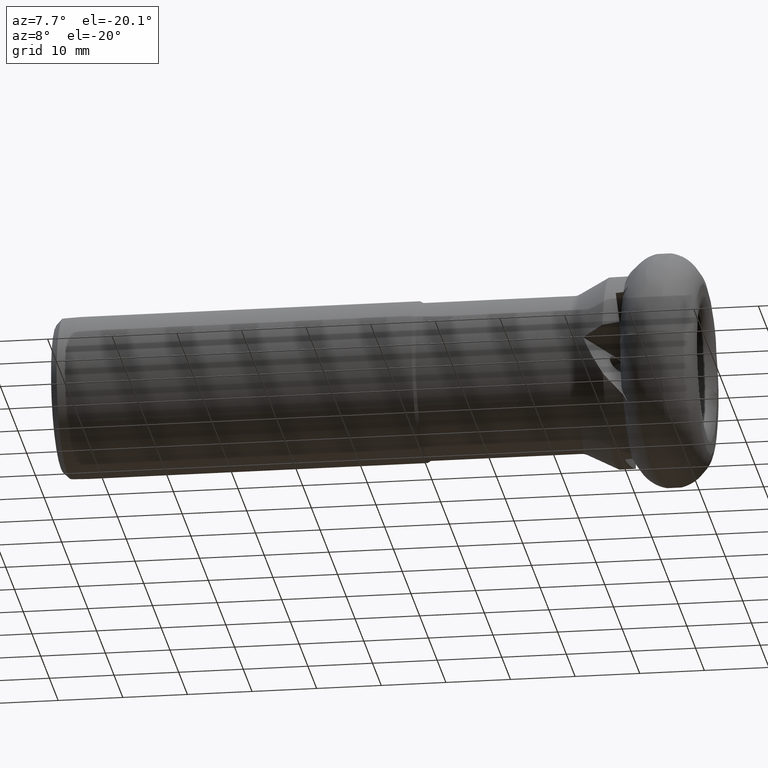
[diagram: clean part render]
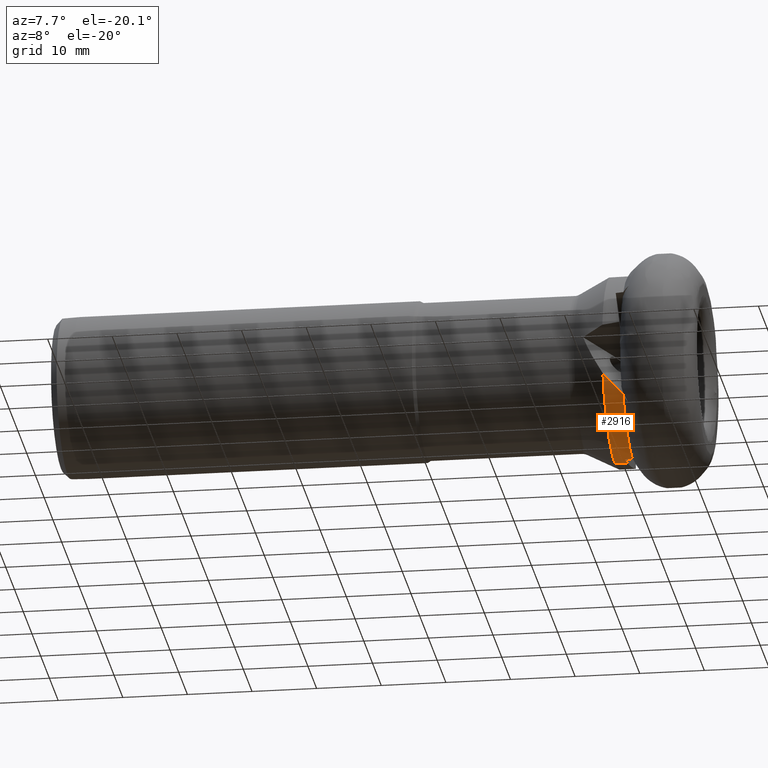
[diagram: same view with one face highlighted and labeled with its STEP entity id]
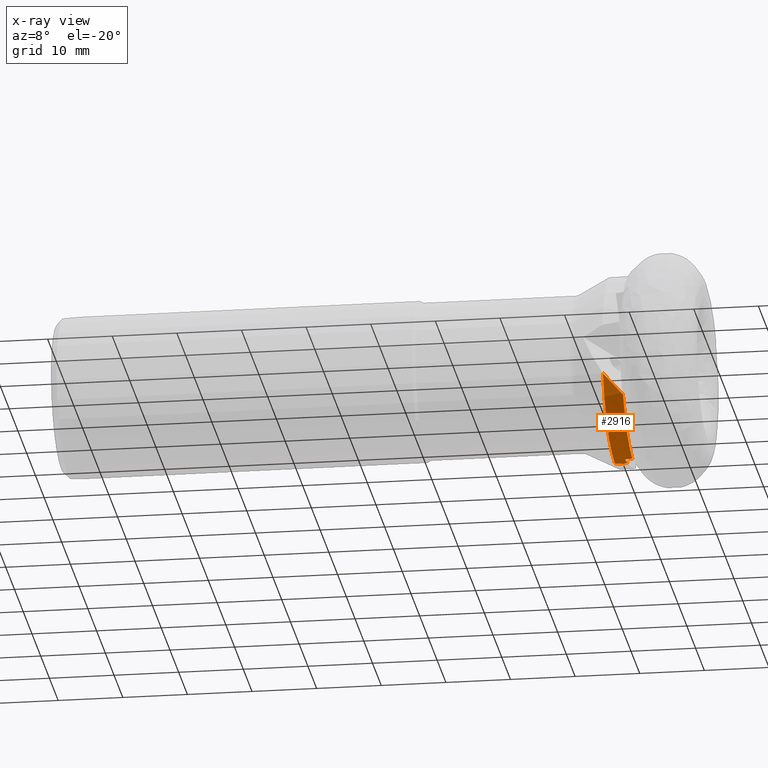
[diagram: x-ray of the same camera — body ghosted, the highlighted face saturated]
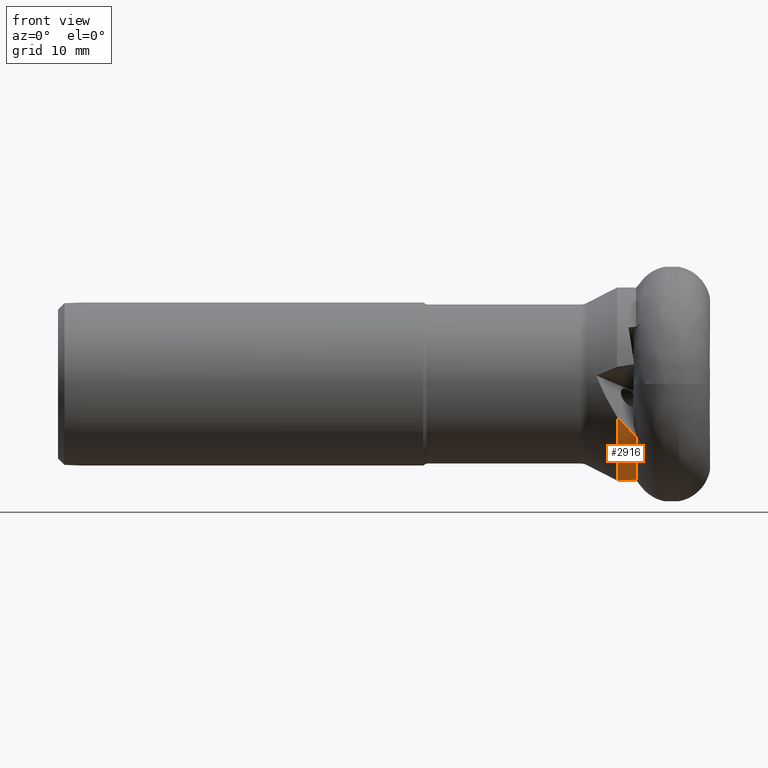
[diagram: same view with one face highlighted and labeled with its STEP entity id]
A machine part, auxiliary view. The second image highlights one B-rep face of the part: STEP entity #2916.
The next image is the same camera in x-ray: the body ghosted, the highlighted face saturated — about 0% of this face is hidden behind the body in this view.
A second angle (front view) of the same face is appended — the face is thin or edge-on in the first view.
In plain terms, the highlighted cylindrical surface (partial cylindrical patch) has radius 14.8 mm, axis along (1, -0, -0).
Its self-contained STEP definition (entity closure, byte-faithful):
#142 = CARTESIAN_POINT ( 'NONE',  ( -11.05761191907887100, 0.0000000000000000000, -14.80000000000000100 ) ) ;
#280 = DIRECTION ( 'NONE',  ( 1.000000000000000000, -0.0000000000000000000, -0.0000000000000000000 ) ) ;
#593 = VERTEX_POINT ( 'NONE', #4638 ) ;
#653 = CARTESIAN_POINT ( 'NONE',  ( 0.0000000000000000000, 0.0000000000000000000, 0.0000000000000000000 ) ) ;
#661 = CARTESIAN_POINT ( 'NONE',  ( -10.88007790933940000, -1.569421733870473900, -14.71665578667274600 ) ) ;
#672 = AXIS2_PLACEMENT_3D ( 'NONE', #4367, #2505, #3924 ) ;
#758 = ORIENTED_EDGE ( 'NONE', *, *, #4508, .T. ) ;
#903 = CARTESIAN_POINT ( 'NONE',  ( -11.12871980286893800, -0.5059588833426869000, -14.79999999999999900 ) ) ;
#923 = EDGE_LOOP ( 'NONE', ( #1489, #5690, #2284, #5279, #1213, #3045, #758 ) ) ;
#1007 = B_SPLINE_CURVE_WITH_KNOTS ( 'NONE', 3,
 ( #5823, #1666, #2709, #3598 ),
 .UNSPECIFIED., .F., .F.,
 ( 4, 4 ),
 ( 0.004810172146803039900, 0.005130825530312556300 ),
 .UNSPECIFIED. ) ;
#1048 =( BOUNDED_CURVE ( )  B_SPLINE_CURVE ( 3, ( #2841, #3762, #2823, #3726 ),
 .UNSPECIFIED., .F., .F. ) 
 B_SPLINE_CURVE_WITH_KNOTS ( ( 4, 4 ),
 ( 1.908317546583268000, 2.119554386617848300 ),
 .UNSPECIFIED. ) 
 CURVE ( )  GEOMETRIC_REPRESENTATION_ITEM ( )  RATIONAL_B_SPLINE_CURVE ( ( 1.000000000000000000, 0.9962850384886385900, 0.9962850384886385900, 1.000000000000000000 ) ) 
 REPRESENTATION_ITEM ( '' )  );
#1213 = ORIENTED_EDGE ( 'NONE', *, *, #4713, .F. ) ;
#1231 = VERTEX_POINT ( 'NONE', #3902 ) ;
#1269 = EDGE_CURVE ( 'NONE', #1231, #5499, #4721, .T. ) ;
#1291 =( BOUNDED_CURVE ( )  B_SPLINE_CURVE ( 3, ( #2142, #1699, #903, #2217 ),
 .UNSPECIFIED., .F., .F. ) 
 B_SPLINE_CURVE_WITH_KNOTS ( ( 4, 4 ),
 ( 4.609874662092192200, 4.712388980384687000 ),
 .UNSPECIFIED. ) 
 CURVE ( )  GEOMETRIC_REPRESENTATION_ITEM ( )  RATIONAL_B_SPLINE_CURVE ( ( 1.000000000000000000, 0.9991244262699103800, 0.9991244262699103800, 1.000000000000000000 ) ) 
 REPRESENTATION_ITEM ( '' )  );
#1345 = AXIS2_PLACEMENT_3D ( 'NONE', #653, #5145, #5608 ) ;
#1396 = FACE_OUTER_BOUND ( 'NONE', #923, .T. ) ;
#1489 = ORIENTED_EDGE ( 'NONE', *, *, #2206, .T. ) ;
#1604 = CARTESIAN_POINT ( 'NONE',  ( -11.27046886429647400, -1.514555863200543600, -14.72230011028320900 ) ) ;
#1641 = EDGE_CURVE ( 'NONE', #4510, #593, #4138, .T. ) ;
#1666 = CARTESIAN_POINT ( 'NONE',  ( -10.17590494511052900, -12.44474741863106400, -8.010878401222912600 ) ) ;
#1699 = CARTESIAN_POINT ( 'NONE',  ( -11.19973429636644000, -1.011253260225228000, -14.77407733956057200 ) ) ;
#1943 = CARTESIAN_POINT ( 'NONE',  ( -10.48991755725684900, -1.624255195419935100, -14.71070484994871900 ) ) ;
#2088 = VERTEX_POINT ( 'NONE', #5609 ) ;
#2142 = CARTESIAN_POINT ( 'NONE',  ( -11.27046886429647400, -1.514555863200543600, -14.72230011028320900 ) ) ;
#2172 = CIRCLE ( 'NONE', #672, 14.80000000000000100 ) ;
#2206 = EDGE_CURVE ( 'NONE', #5182, #1231, #2172, .T. ) ;
#2217 = CARTESIAN_POINT ( 'NONE',  ( -11.05761191907887100, 0.0000000000000000000, -14.80000000000000100 ) ) ;
#2284 = ORIENTED_EDGE ( 'NONE', *, *, #3137, .F. ) ;
#2342 = CARTESIAN_POINT ( 'NONE',  ( -10.10000000000000000, 0.0000000000000000000, 0.0000000000000000000 ) ) ;
#2505 = DIRECTION ( 'NONE',  ( 1.000000000000000000, -0.0000000000000000000, -0.0000000000000000000 ) ) ;
#2650 = CARTESIAN_POINT ( 'NONE',  ( -11.27046886429647400, -1.514555863200543600, -14.72230011028320900 ) ) ;
#2671 = EDGE_CURVE ( 'NONE', #2088, #4563, #1007, .T. ) ;
#2709 = CARTESIAN_POINT ( 'NONE',  ( -10.25001298732262000, -12.48724305556814700, -7.944512249243732800 ) ) ;
#2823 = CARTESIAN_POINT ( 'NONE',  ( -12.15393924666710000, -13.54514010024194400, -6.054684746403276000 ) ) ;
#2841 = CARTESIAN_POINT ( 'NONE',  ( -10.32234787044041900, -12.53019453060133500, -7.876180865450494100 ) ) ;
#2909 = CARTESIAN_POINT ( 'NONE',  ( -13.00000000000000000, -13.90307174457741000, -5.073913289083019000 ) ) ;
#2916 = ADVANCED_FACE ( 'NONE', ( #1396 ), #3125, .T. ) ;
#3045 = ORIENTED_EDGE ( 'NONE', *, *, #2671, .T. ) ;
#3125 = CYLINDRICAL_SURFACE ( 'NONE', #1345, 14.80000000000000100 ) ;
#3127 = CARTESIAN_POINT ( 'NONE',  ( -10.10000000000000000, -1.679054534381930100, -14.70444748606935700 ) ) ;
#3137 = EDGE_CURVE ( 'NONE', #4510, #5499, #1291, .T. ) ;
#3277 = DIRECTION ( 'NONE',  ( 1.000000000000000000, -0.0000000000000000000, -0.0000000000000000000 ) ) ;
#3503 = VECTOR ( 'NONE', #280, 1000.000000000000000 ) ;
#3598 = CARTESIAN_POINT ( 'NONE',  ( -10.32234787044041900, -12.53019453060133500, -7.876180865450494100 ) ) ;
#3726 = CARTESIAN_POINT ( 'NONE',  ( -13.00000000000000000, -13.90307174457741000, -5.073913289083019000 ) ) ;
#3747 = CARTESIAN_POINT ( 'NONE',  ( -10.32234787044041900, -12.53019453060133500, -7.876180865450494100 ) ) ;
#3762 = CARTESIAN_POINT ( 'NONE',  ( -11.25806038131026400, -13.08580796103182000, -6.992256983299962600 ) ) ;
#3876 = AXIS2_PLACEMENT_3D ( 'NONE', #2342, #3277, #5699 ) ;
#3902 = CARTESIAN_POINT ( 'NONE',  ( -13.00000000000000000, 0.0000000000000000000, -14.80000000000000100 ) ) ;
#3924 = DIRECTION ( 'NONE',  ( 0.0000000000000000000, 0.0000000000000000000, -1.000000000000000000 ) ) ;
#4138 =( BOUNDED_CURVE ( )  B_SPLINE_CURVE ( 3, ( #1604, #661, #1943, #3127 ),
 .UNSPECIFIED., .F., .F. ) 
 B_SPLINE_CURVE_WITH_KNOTS ( ( 4, 4 ),
 ( 4.814903298677184500, 4.826083396456294100 ),
 .UNSPECIFIED. ) 
 CURVE ( )  GEOMETRIC_REPRESENTATION_ITEM ( )  RATIONAL_B_SPLINE_CURVE ( ( 1.000000000000000000, 0.9999895838115950800, 0.9999895838115950800, 1.000000000000000000 ) ) 
 REPRESENTATION_ITEM ( '' )  );
#4367 = CARTESIAN_POINT ( 'NONE',  ( -13.00000000000000000, 0.0000000000000000000, 0.0000000000000000000 ) ) ;
#4508 = EDGE_CURVE ( 'NONE', #4563, #5182, #1048, .T. ) ;
#4510 = VERTEX_POINT ( 'NONE', #2650 ) ;
#4563 = VERTEX_POINT ( 'NONE', #3747 ) ;
#4638 = CARTESIAN_POINT ( 'NONE',  ( -10.10000000000000000, -1.679054534381930100, -14.70444748606935700 ) ) ;
#4713 = EDGE_CURVE ( 'NONE', #2088, #593, #5203, .T. ) ;
#4721 = LINE ( 'NONE', #5715, #3503 ) ;
#5145 = DIRECTION ( 'NONE',  ( 1.000000000000000000, -0.0000000000000000000, -0.0000000000000000000 ) ) ;
#5182 = VERTEX_POINT ( 'NONE', #2909 ) ;
#5203 = CIRCLE ( 'NONE', #3876, 14.80000000000000100 ) ;
#5279 = ORIENTED_EDGE ( 'NONE', *, *, #1641, .T. ) ;
#5499 = VERTEX_POINT ( 'NONE', #142 ) ;
#5608 = DIRECTION ( 'NONE',  ( 0.0000000000000000000, 0.0000000000000000000, -1.000000000000000000 ) ) ;
#5609 = CARTESIAN_POINT ( 'NONE',  ( -10.10000000000000000, -12.40279755281025900, -8.075308840162330500 ) ) ;
#5690 = ORIENTED_EDGE ( 'NONE', *, *, #1269, .T. ) ;
#5699 = DIRECTION ( 'NONE',  ( 0.0000000000000000000, 0.0000000000000000000, -1.000000000000000000 ) ) ;
#5715 = CARTESIAN_POINT ( 'NONE',  ( 0.0000000000000000000, 0.0000000000000000000, -14.80000000000000100 ) ) ;
#5823 = CARTESIAN_POINT ( 'NONE',  ( -10.10000000000000000, -12.40279755281025900, -8.075308840162330500 ) ) ;